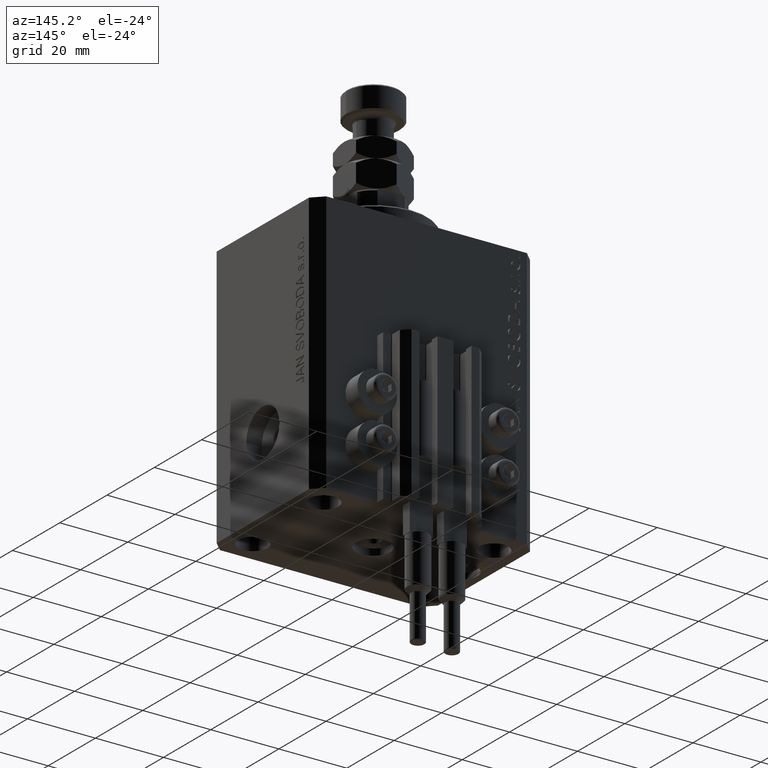
[diagram: clean part render]
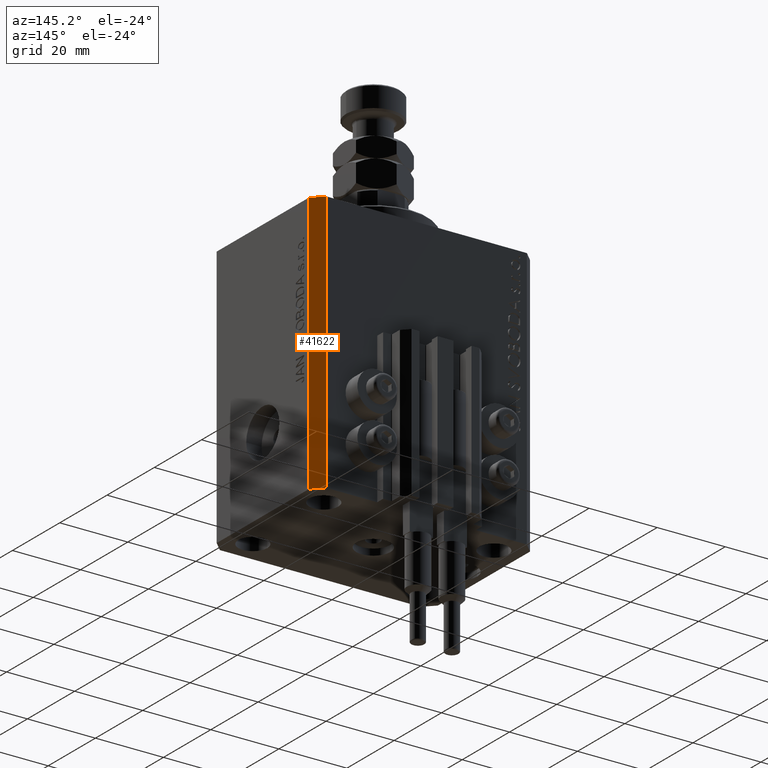
[diagram: same view with one face highlighted and labeled with its STEP entity id]
A machine part, auxiliary view. The second image highlights one B-rep face of the part: STEP entity #41622.
In plain terms, the highlighted planar face has unit normal (0.7071, 0.7071, 0).
Its self-contained STEP definition (entity closure, byte-faithful):
#3367 = DIRECTION ( 'NONE',  ( -0.7071067811865344721, 0.7071067811865606734, 0.000000000000000000 ) ) ;
#3630 = LINE ( 'NONE', #15495, #37971 ) ;
#4546 = DIRECTION ( 'NONE',  ( -0.7071067811865344721, 0.7071067811865606734, 0.000000000000000000 ) ) ;
#8366 = VERTEX_POINT ( 'NONE', #28641 ) ;
#10229 = VECTOR ( 'NONE', #31069, 1000.000000000000000 ) ;
#11156 = VERTEX_POINT ( 'NONE', #35589 ) ;
#13097 = ORIENTED_EDGE ( 'NONE', *, *, #16280, .T. ) ;
#14017 = DIRECTION ( 'NONE',  ( 0.000000000000000000, 0.000000000000000000, 1.000000000000000000 ) ) ;
#15495 = CARTESIAN_POINT ( 'NONE',  ( 32.49999999999702993, 19.49999999999945999, 0.000000000000000000 ) ) ;
#16280 = EDGE_CURVE ( 'NONE', #42266, #29197, #18556, .T. ) ;
#18415 = CARTESIAN_POINT ( 'NONE',  ( 32.49999999999702993, 19.49999999999945999, -77.00000000000000000 ) ) ;
#18556 = LINE ( 'NONE', #33437, #27307 ) ;
#20758 = EDGE_CURVE ( 'NONE', #11156, #8366, #43681, .T. ) ;
#22257 = CARTESIAN_POINT ( 'NONE',  ( 29.49999999999707967, 22.49999999999952038, -77.00000000000000000 ) ) ;
#23364 = EDGE_LOOP ( 'NONE', ( #48855, #26688, #47359, #13097 ) ) ;
#26688 = ORIENTED_EDGE ( 'NONE', *, *, #20758, .F. ) ;
#27307 = VECTOR ( 'NONE', #14017, 1000.000000000000000 ) ;
#27759 = CARTESIAN_POINT ( 'NONE',  ( 32.49999999999702993, 19.49999999999945999, -77.00000000000000000 ) ) ;
#28430 = CARTESIAN_POINT ( 'NONE',  ( 29.49999999999707967, 22.49999999999952038, 0.000000000000000000 ) ) ;
#28641 = CARTESIAN_POINT ( 'NONE',  ( 32.49999999999702993, 19.49999999999945999, 0.000000000000000000 ) ) ;
#29197 = VERTEX_POINT ( 'NONE', #28430 ) ;
#31069 = DIRECTION ( 'NONE',  ( 0.000000000000000000, 0.000000000000000000, 1.000000000000000000 ) ) ;
#33437 = CARTESIAN_POINT ( 'NONE',  ( 29.49999999999707967, 22.49999999999952038, -77.00000000000000000 ) ) ;
#34538 = DIRECTION ( 'NONE',  ( 0.7071067811865606734, 0.7071067811865344721, -0.000000000000000000 ) ) ;
#35589 = CARTESIAN_POINT ( 'NONE',  ( 32.49999999999702993, 19.49999999999945999, -77.00000000000000000 ) ) ;
#35745 = VECTOR ( 'NONE', #4546, 1000.000000000000000 ) ;
#37971 = VECTOR ( 'NONE', #3367, 1000.000000000000000 ) ;
#38330 = FACE_OUTER_BOUND ( 'NONE', #23364, .T. ) ;
#40664 = EDGE_CURVE ( 'NONE', #8366, #29197, #3630, .T. ) ;
#41622 = ADVANCED_FACE ( 'NONE', ( #38330 ), #46165, .T. ) ;
#41872 = DIRECTION ( 'NONE',  ( -0.7071067811865344721, 0.7071067811865606734, 0.000000000000000000 ) ) ;
#42266 = VERTEX_POINT ( 'NONE', #22257 ) ;
#43167 = LINE ( 'NONE', #46208, #35745 ) ;
#43681 = LINE ( 'NONE', #27759, #10229 ) ;
#46165 = PLANE ( 'NONE',  #49298 ) ;
#46208 = CARTESIAN_POINT ( 'NONE',  ( 32.49999999999702993, 19.49999999999945999, -77.00000000000000000 ) ) ;
#46931 = EDGE_CURVE ( 'NONE', #11156, #42266, #43167, .T. ) ;
#47359 = ORIENTED_EDGE ( 'NONE', *, *, #46931, .T. ) ;
#48855 = ORIENTED_EDGE ( 'NONE', *, *, #40664, .F. ) ;
#49298 = AXIS2_PLACEMENT_3D ( 'NONE', #18415, #34538, #41872 ) ;